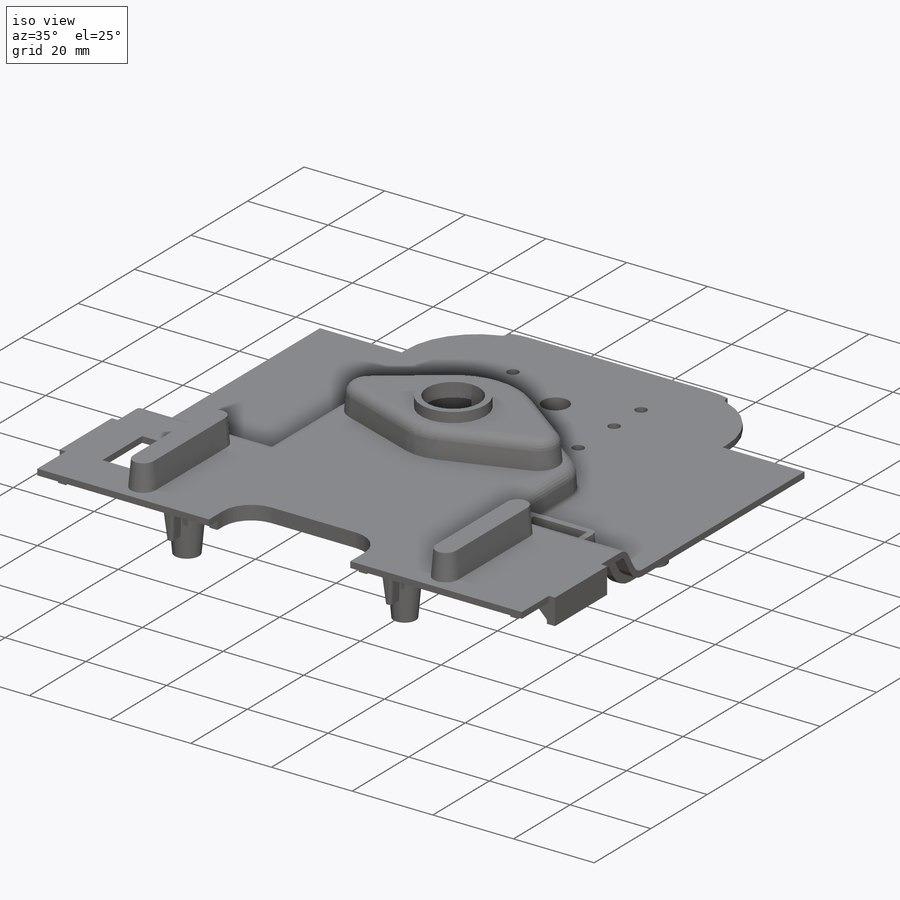
[diagram: iso view]
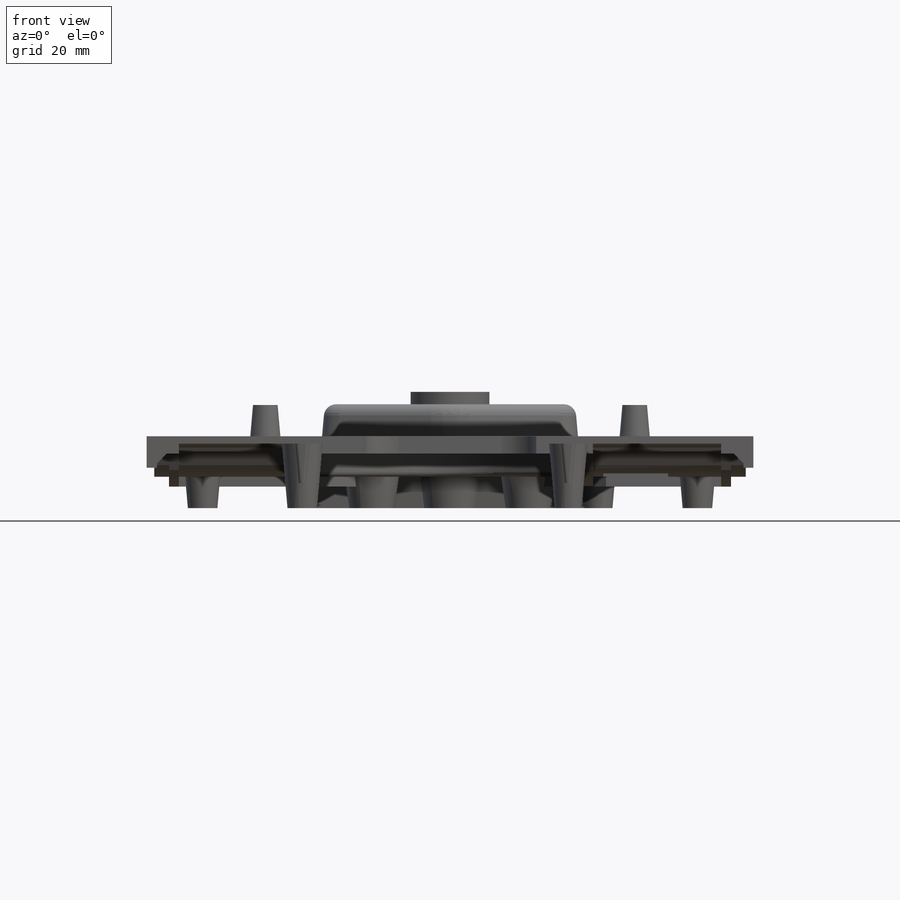
[diagram: front view]
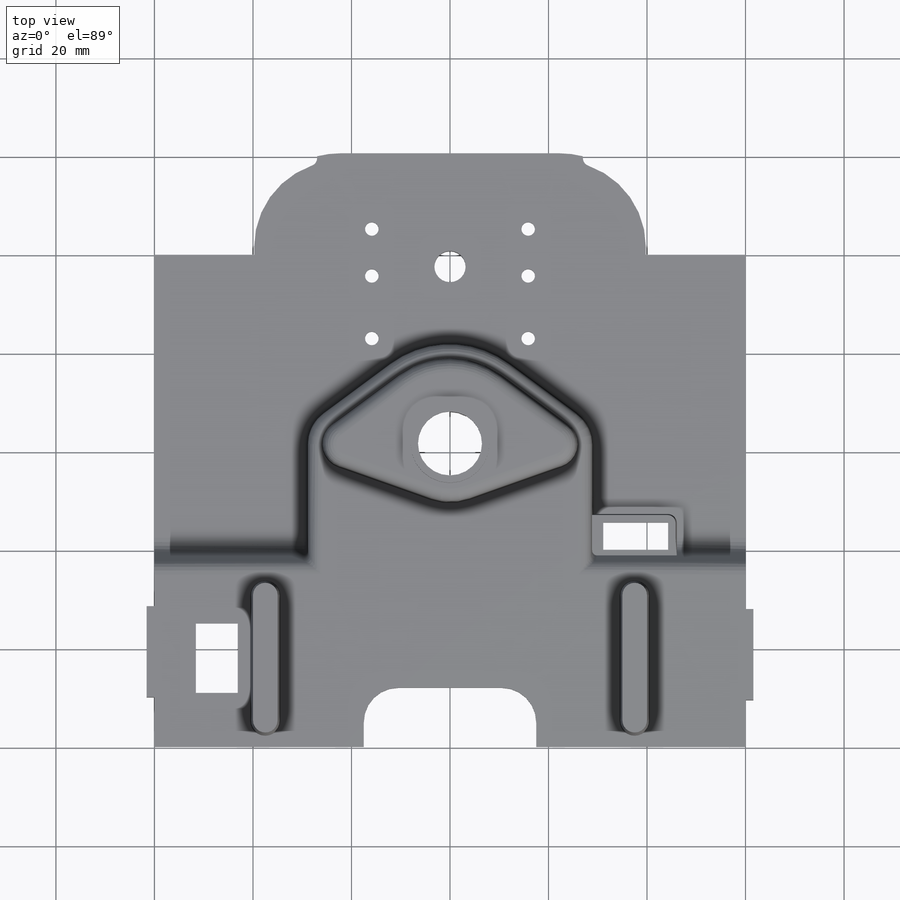
[diagram: top view]
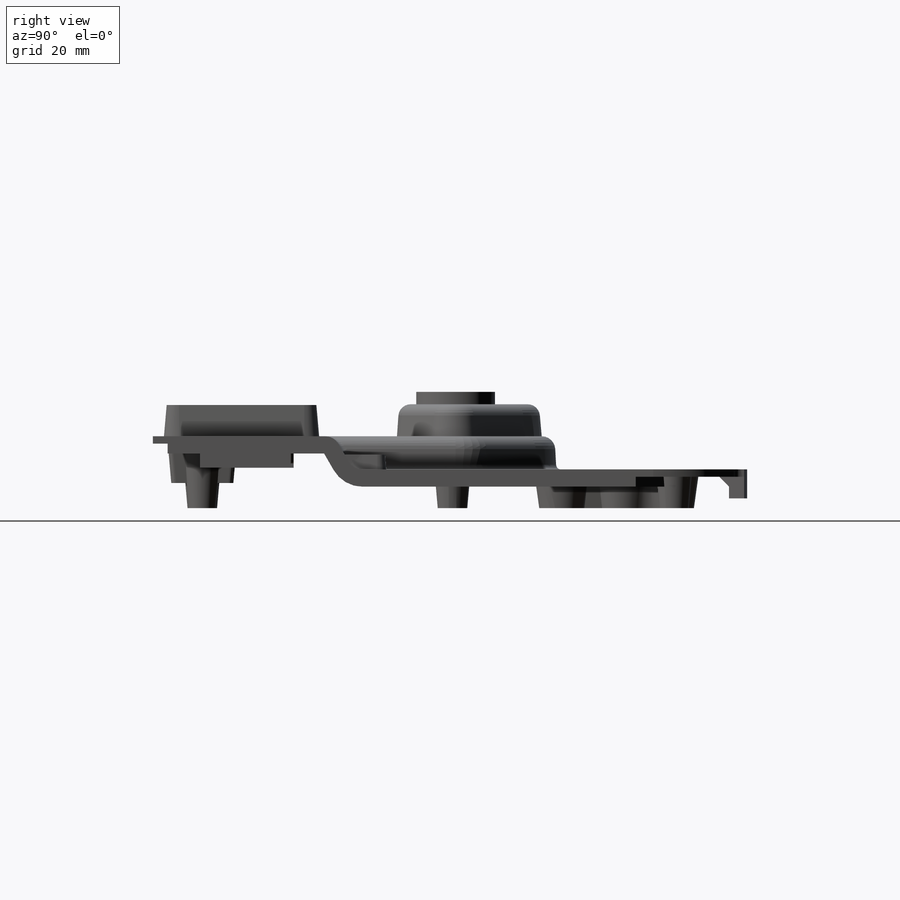
[diagram: right view]
SOLIDWORKS PART (.sldprt)
format: sldprt  version: not decoded by parser v0  size: 2,107,392 bytes
history: native  units: mm
features: sketch x48, extrude x30, cut_extrude x17, fillet x10, chamfer x7, plane x7, mirror x3, material x1 (+16 scaffold rows collapsed)
feature tree (139):
  scaffold x16  (default folders/planes/origin — collapsed)
  material  "1080 Polyurethane"
  sketch  "Sketch1"  dims[D1=1.5mm]
  extrude  "Boss-Extrude1"  Depth=120.12mm
  sketch  "Sketch4"  dims[c1.D1=19.32mm c1.D2=19.32mm c1.D3=19.32mm c2.D1=18.5mm c2.D2=19.18mm c3.D1=18.5mm c3.D2=38.1mm c3.D3=20.6mm c3.D4=1.5mm c4.D2=79.27mm c4.D1=44.45mm c5.D2=79.55mm c5.D3=20.61mm c5.D5=53.975mm]
  cut_extrude  "Cut-Extrude1"  [1 undecoded]
  sketch  "Sketch5"  dims[D1=0.0mm D2=2.0mm]
  cut_extrude  "Cut-Extrude2"  [1 undecoded]
  sketch  "Sketch7"  dims[D2=2.0mm D1=2.0mm]
  extrude  "Boss-Extrude2"  [1 undecoded]
  sketch  "Sketch8"  dims[D1=10.0mm]
  extrude  "Boss-Extrude3"  Depth=1.5mm
  sketch  "Sketch9"  dims[D1=0.0mm]
  cut_extrude  "Cut-Extrude3"  [1 undecoded]
  chamfer  "Chamfer1"  Distance=6.736mm Angle=3deg
  sketch  "Sketch11"  dims[c1.D1=15.0mm c1.D2=~7.024482mm c1.D3=~7.024482mm c1.D4=6.35mm c1.D5=2.74mm c1.D6=~2.70764mm c1.D7=~2.70764mm c2.D1=15.875mm c2.D2=36.195mm c2.D3=14.605mm c2.D6=12.7mm c2.D7=9.525mm]
  cut_extrude  "Cut-Extrude5"  [1 undecoded]
  sketch  "Sketch12"  dims[D1=11.0mm D4=3.0mm D2=1.5875mm D3=1.5875mm]
  extrude  "Boss-Extrude5"  Depth=6.35mm
  sketch  "Sketch13"  dims[D1=6.37mm]
  cut_extrude  "Cut-Extrude7"  Depth=2mm
  mirror  "Mirror1"
  sketch  "Sketch15"  dims[D1=3.0mm D4=13.0mm D2=1.5875mm D3=1.5875mm]
  extrude  "Bearing-Support"  Depth=6.35mm
  sketch  "Sketch14"
  cut_extrude  "Cut-Extrude8"  [1 undecoded]
  sketch  "Sketch35"  dims[c1.D1=~5.132574mm c1.D2=6.0mm c2.D1=42.0mm]
  cut_extrude  "Cut-Extrude13"  Depth=4mm
  plane  "Plane4"  Offset=3mm
  sketch  "Sketch38"  dims[D1=1.5mm]
  extrude  "Boss-Extrude18"  [1 undecoded]
  sketch  "Sketch41"
  cut_extrude  "Cut-Extrude16"  Depth=2mm
  fillet  "Fillet1"  Radius=2.75mm
  fillet  "Fillet4"  Radius=1mm
  plane  "Plane2"  Offset=6.35mm
  sketch  "Sketch19"  dims[D1=35.0mm D2=5.0mm D3=25.4mm D4=18.0mm]
  extrude  "Boss-Extrude9"  Depth=6.35mm
  plane  "Plane1"  Offset=3mm
  sketch  "Sketch21"  dims[D2=30.0mm D3=3.0mm D1=2.0mm]
  extrude  "Boss-Extrude10"  Depth=2mm
  mirror  "Mirror2"
  fillet  "Fillet10"  Radius=1.5875mm
  sketch  "Sketch22"  dims[D1=3.175mm]
  extrude  "Boss-Extrude11"  Depth=4.3688mm
  sketch  "Sketch24"  dims[D1=18.465mm D2=17.526mm]
  extrude  "Boss-Extrude12"  Depth=2.1mm
  sketch  "Sketch25"  dims[c1.OFFSET=0.25mm c1.D2=~0.143395mm c1.D1=0.25mm c1.D3=~0.289693mm c1.D4=~0.280714mm c2.D1=0.25mm]
  cut_extrude  "Cut-Extrude10"  [1 undecoded]
  plane  "Plane3"  Offset=3mm
  sketch  "Sketch28"  dims[D1=0.0mm]
  cut_extrude  "Cut-Extrude11"  [1 undecoded]
  sketch  "Sketch27"  dims[c1.D1=1.5mm c1.D2=1.5mm c1.D3=~1.170788mm c1.D4=~2.297235mm c2.D1=1.0mm]
  extrude  "Boss-Extrude13"  [1 undecoded]
  fillet  "Fillet11"  Radius=1.5875mm
  sketch  "Sketch29"  dims[D1=18.465mm]
  extrude  "Boss-Extrude14"  Depth=2mm
  sketch  "Sketch31"  dims[D1=1.5mm D2=1.5mm]
  cut_extrude  "Cut-Extrude12"  [1 undecoded]
  sketch  "Sketch32"  dims[D1=0.0mm D2=0.0mm]
  extrude  "Boss-Extrude15"  Depth=2.54mm
  sketch  "Sketch33"  dims[D2=5.0mm D3=18.0mm D1=0.0mm]
  extrude  "InnerRibs"  Depth=2mm
  chamfer  "Chamfer2"  Distance=1.5mm
  mirror  "Mirror3"
  sketch  "Sketch73"  dims[D1=0.0mm]
  cut_extrude  "Sonar-Wire-Passthrough"  [1 undecoded]
  chamfer  "Chamfer3"  Distance=5mm
  fillet  "Fillet13"  Radius=5mm
  sketch  "Sketch34"  dims[D1=2.0mm D2=25.0mm D5=20.0mm D6=28.0mm D3=1.0mm D4=1.0mm]
  extrude  "Boss-Extrude17"  Depth=2mm
  sketch  "Sketch36"  dims[D1=14.0716mm D2=8.509mm D3=10.0mm]
  cut_extrude  "Cut-Extrude14"  [1 undecoded]
  chamfer  "Chamfer4"  Distance=3mm Angle=5deg
  chamfer  "Chamfer5"  Distance=3mm Angle=5deg
  plane  "Plane7"  Offset=5.5mm
  sketch  "Sketch61"  dims[c1.D1=1.5mm c1.D2=~12.554957mm c2.D2=15.0deg c2.D3=~2.55325mm c3.D3=195.0deg c3.D4=7.0mm c3.D5=4.5mm c3.D6=1.5mm c3.D7=7.0mm c3.D1=1.7mm c3.D8=5.0mm]
  extrude  "Boss-Extrude31"  Depth=6.5mm
  sketch  "Sketch52"  dims[c1.D1=30.0mm c1.D2=21.0mm c2.D1=1.0mm]
  extrude  "Boss-Extrude26"  [1 undecoded]
  sketch  "Sketch66"  dims[D1=0.0mm D2=0.0mm]
  extrude  "Boss-Extrude34"  [1 undecoded]
  fillet  "Fillet20"  Radius=1.5mm
  sketch  "Sketch63"  dims[D2=13.0mm D1=0.0mm]
  extrude  "Boss-Extrude32"  Depth=1mm
  sketch  "Sketch64"  dims[D1=1.5mm]
  extrude  "Boss-Extrude33"  Depth=2.5mm
  fillet  "Fillet19"  Radius=2.5mm
  sketch  "Sketch62"  dims[D1=0.0mm]
  cut_extrude  "Cut-Extrude20"  [1 undecoded]
  sketch  "Sketch68"  dims[D1=0.0mm]
  extrude  "Boss-Extrude35"  [1 undecoded]
  sketch  "Sketch70"  dims[D1=0.0mm]
  cut_extrude  "Cut-Extrude22"  [1 undecoded]
  sketch  "Sketch71"  dims[c1.D1=~4.268509mm c2.D1=~0.258169deg c3.D1=3.0mm]
  extrude  "Boss-Extrude36"  [1 undecoded]
  sketch  "Sketch74"  dims[D1=0.0mm]
  extrude  "Boss-Extrude37"  [1 undecoded]
  sketch  "Sketch75"  dims[D1=16.0mm]
  extrude  "Boss-Extrude38"  [1 undecoded]
  fillet  "Fillet12"  Radius=1.25mm
  chamfer  "Chamfer6"  Distance=2mm Angle=45deg
  chamfer  "Chamfer7"  Distance=2mm Angle=45deg
  sketch  "Sketch76"  dims[D3=7.0mm D1=35.0mm D2=12.0mm]
  cut_extrude  "Cut-Extrude23"  [1 undecoded]
  sketch  "Sketch77"  dims[D1=2.0mm]
  extrude  "Boss-Extrude39"  [1 undecoded]
  plane  "Plane8"
  sketch  "Sketch78"  dims[D1=6.0mm D2=5.5mm]
  extrude  "ScrewBoss-RearChassis"  [1 undecoded]
  sketch  "Sketch79"  dims[D1=2.2606mm]
  cut_extrude  "ScrewBoss-SelfTapping"  [1 undecoded]
  sketch  "Sketch80"  dims[D1=0.75mm D2=0.75mm]
  extrude  "Boss-Extrude41"  [1 undecoded]
  sketch  "Sketch81"  dims[D1=1.5mm D2=1.5mm]
  extrude  "Boss-Extrude42"  [1 undecoded]
  plane  "Plane9"  Offset=8mm
  sketch  "Sketch85"  dims[D1=1.5mm D2=3.4mm D3=3.4mm]
  extrude  "Boss-Extrude46"  [1 undecoded]
  fillet  "Fillet21"  Radius=0.75mm
  fillet  "Fillet22"  Radius=1mm ModelUUID=0mm UUID=0mm
  sketch  "Sketch87"  dims[D1=2.0mm]
  extrude  "Boss-Extrude47"  [1 undecoded]
  sketch  "Sketch88"  dims[D9=2.5mm D1=0.0mm D2=0.0mm D3=0.0mm D4=0.0mm D5=0.0mm D6=0.0mm D7=0.0mm D8=0.0mm]
decode coverage: 81 of 115 modeling features carry decoded parameters
note: ~ marks probable driven/reference dimensions
note: 29 parameter values undecoded
summary: no parameter record found for 29 features
note: suppression state not decoded; provenance and decode notes live in map.json
